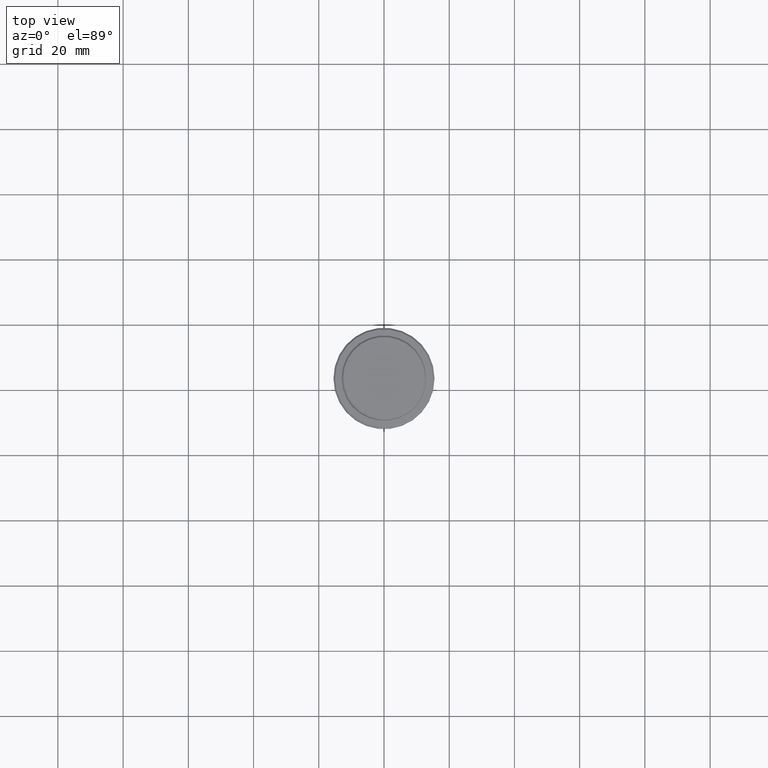
[diagram: clean part render]
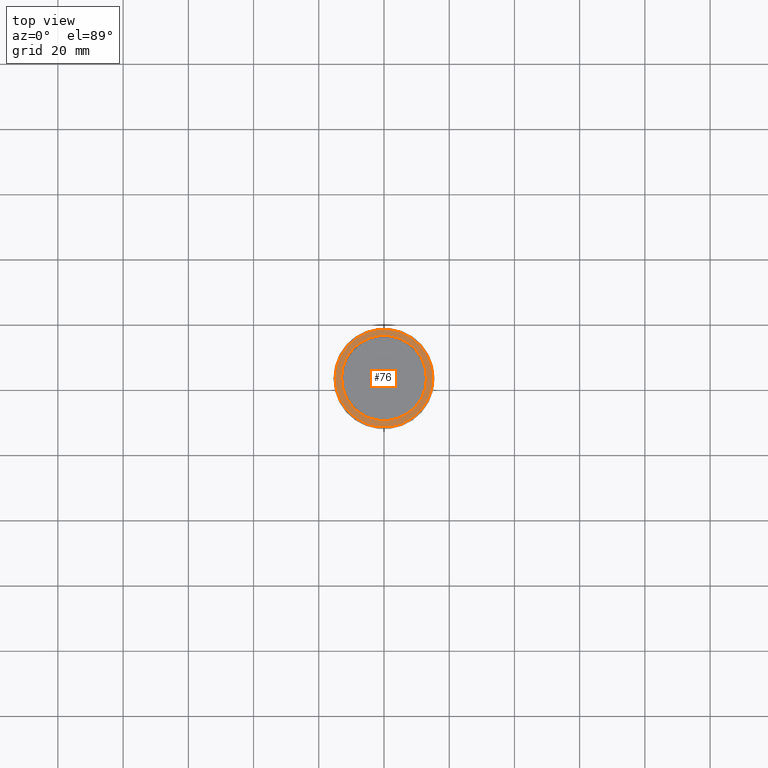
[diagram: same view with one face highlighted and labeled with its STEP entity id]
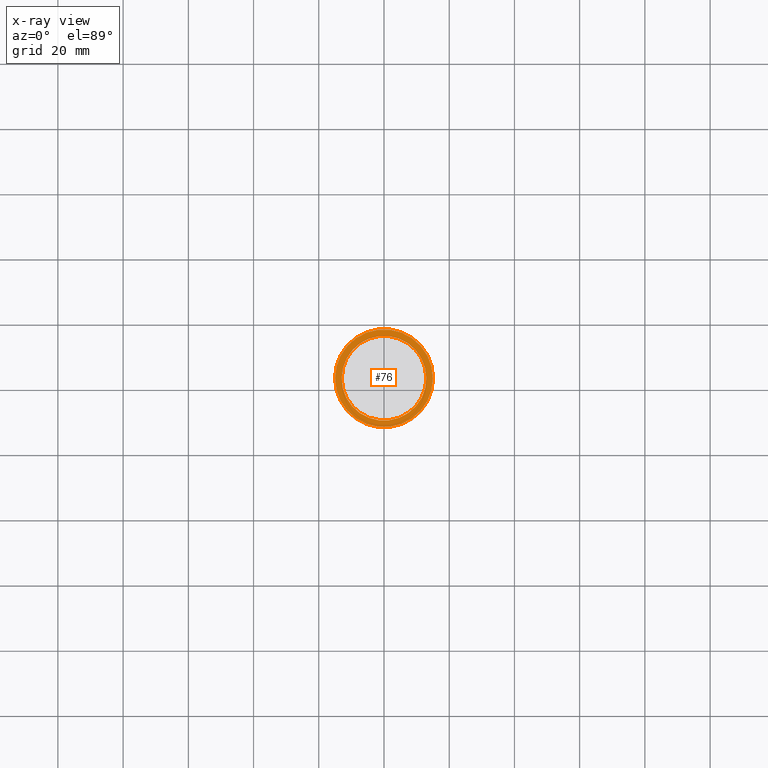
[diagram: x-ray of the same camera — body ghosted, the highlighted face saturated]
A machine part, top view. The second image highlights one B-rep face of the part: STEP entity #76.
The next image is the same camera in x-ray: the body ghosted, the highlighted face saturated — about 0% of this face is hidden behind the body in this view.
In plain terms, the highlighted planar face has unit normal (0, -0, 1).
Its self-contained STEP definition (entity closure, byte-faithful):
#4 = EDGE_CURVE ( 'NONE', #1264, #1276, #167, .T. ) ;
#43 = VERTEX_POINT ( 'NONE', #419 ) ;
#57 = DIRECTION ( 'NONE',  ( -0.000000000000000000, -0.000000000000000000, 1.000000000000000000 ) ) ;
#72 = CARTESIAN_POINT ( 'NONE',  ( 14.99999999999998579, 1.867586368699712587E-15, -9.000000000000001776 ) ) ;
#75 = CARTESIAN_POINT ( 'NONE',  ( 0.000000000000000000, 0.000000000000000000, -9.000000000000001776 ) ) ;
#76 = ADVANCED_FACE ( 'NONE', ( #465, #1003 ), #877, .T. ) ;
#119 = DIRECTION ( 'NONE',  ( 0.000000000000000000, 0.000000000000000000, -1.000000000000000000 ) ) ;
#167 = CIRCLE ( 'NONE', #652, 12.99999999999999467 ) ;
#234 = EDGE_CURVE ( 'NONE', #487, #43, #509, .T. ) ;
#264 = EDGE_CURVE ( 'NONE', #43, #487, #1313, .T. ) ;
#293 = DIRECTION ( 'NONE',  ( 1.000000000000000000, 0.000000000000000000, 0.000000000000000000 ) ) ;
#330 = AXIS2_PLACEMENT_3D ( 'NONE', #1208, #119, #551 ) ;
#362 = CARTESIAN_POINT ( 'NONE',  ( 0.000000000000000000, 0.000000000000000000, -9.000000000000001776 ) ) ;
#371 = ORIENTED_EDGE ( 'NONE', *, *, #234, .T. ) ;
#419 = CARTESIAN_POINT ( 'NONE',  ( -14.99999999999998579, 0.000000000000000000, -9.000000000000001776 ) ) ;
#465 = FACE_OUTER_BOUND ( 'NONE', #740, .T. ) ;
#469 = DIRECTION ( 'NONE',  ( 0.000000000000000000, 0.000000000000000000, -1.000000000000000000 ) ) ;
#473 = CARTESIAN_POINT ( 'NONE',  ( 0.000000000000000000, 12.49999999999999289, -9.000000000000001776 ) ) ;
#487 = VERTEX_POINT ( 'NONE', #72 ) ;
#509 = CIRCLE ( 'NONE', #1014, 14.99999999999998579 ) ;
#535 = ORIENTED_EDGE ( 'NONE', *, *, #264, .T. ) ;
#551 = DIRECTION ( 'NONE',  ( 1.000000000000000000, 0.000000000000000000, 0.000000000000000000 ) ) ;
#652 = AXIS2_PLACEMENT_3D ( 'NONE', #362, #469, #1343 ) ;
#703 = DIRECTION ( 'NONE',  ( -0.000000000000000000, -0.000000000000000000, 1.000000000000000000 ) ) ;
#709 = AXIS2_PLACEMENT_3D ( 'NONE', #75, #703, #932 ) ;
#740 = EDGE_LOOP ( 'NONE', ( #535, #371 ) ) ;
#810 = ORIENTED_EDGE ( 'NONE', *, *, #4, .T. ) ;
#875 = EDGE_CURVE ( 'NONE', #1276, #1264, #939, .T. ) ;
#877 = PLANE ( 'NONE',  #1041 ) ;
#888 = DIRECTION ( 'NONE',  ( 0.000000000000000000, -0.000000000000000000, 1.000000000000000000 ) ) ;
#932 = DIRECTION ( 'NONE',  ( 1.000000000000000000, 0.000000000000000000, 0.000000000000000000 ) ) ;
#939 = CIRCLE ( 'NONE', #330, 12.99999999999999467 ) ;
#1003 = FACE_BOUND ( 'NONE', #1132, .T. ) ;
#1014 = AXIS2_PLACEMENT_3D ( 'NONE', #1150, #57, #293 ) ;
#1026 = ORIENTED_EDGE ( 'NONE', *, *, #875, .T. ) ;
#1041 = AXIS2_PLACEMENT_3D ( 'NONE', #473, #888, #1341 ) ;
#1132 = EDGE_LOOP ( 'NONE', ( #810, #1026 ) ) ;
#1141 = CARTESIAN_POINT ( 'NONE',  ( 12.99999999999999467, 0.000000000000000000, -9.000000000000001776 ) ) ;
#1150 = CARTESIAN_POINT ( 'NONE',  ( 0.000000000000000000, 0.000000000000000000, -9.000000000000001776 ) ) ;
#1208 = CARTESIAN_POINT ( 'NONE',  ( 0.000000000000000000, 0.000000000000000000, -9.000000000000001776 ) ) ;
#1264 = VERTEX_POINT ( 'NONE', #1141 ) ;
#1276 = VERTEX_POINT ( 'NONE', #1369 ) ;
#1313 = CIRCLE ( 'NONE', #709, 14.99999999999998579 ) ;
#1341 = DIRECTION ( 'NONE',  ( 1.000000000000000000, 0.000000000000000000, 0.000000000000000000 ) ) ;
#1343 = DIRECTION ( 'NONE',  ( 1.000000000000000000, 0.000000000000000000, 0.000000000000000000 ) ) ;
#1369 = CARTESIAN_POINT ( 'NONE',  ( -12.99999999999999467, 1.592040838891558504E-15, -9.000000000000001776 ) ) ;